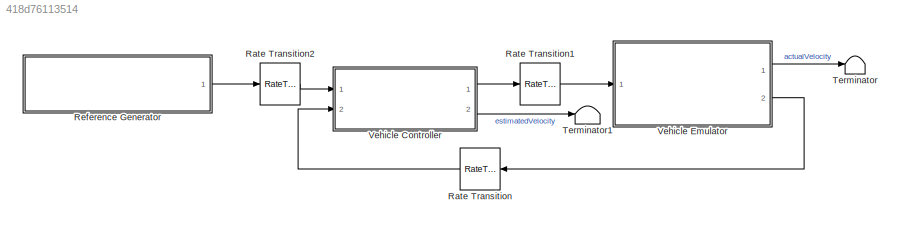
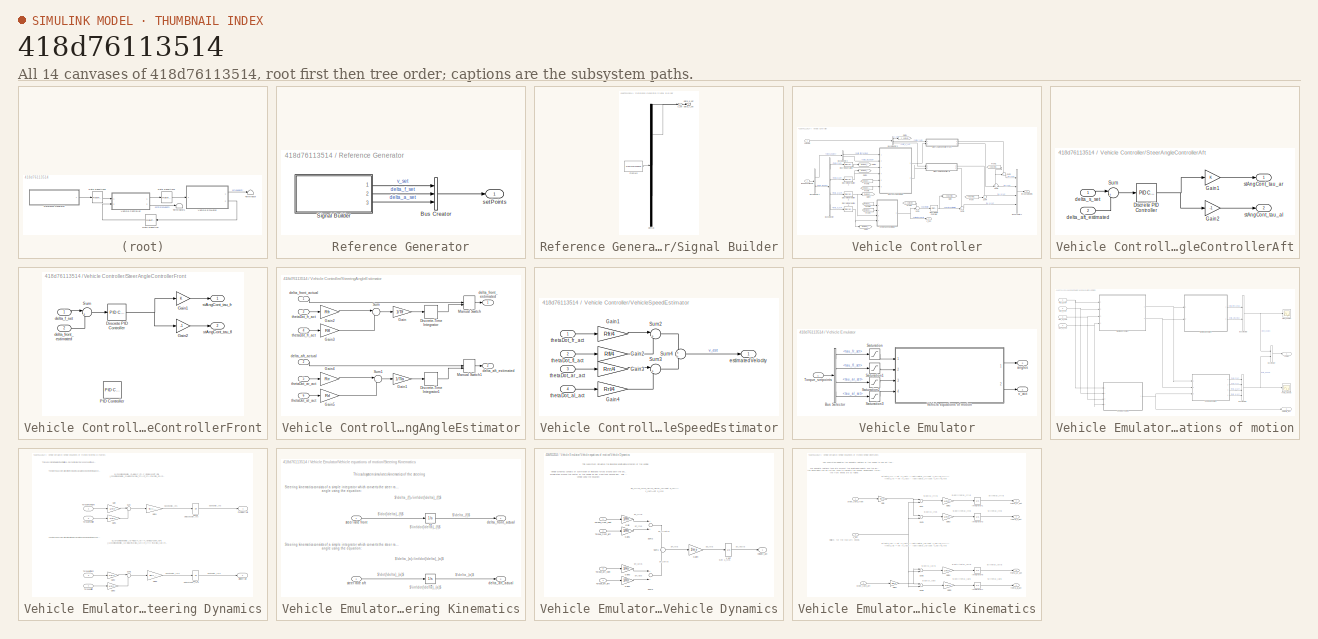
[diagram: thumbnail index - all 14 canvases of the model, root first then tree order]
MODEL slx_418d76113514
KIND model
CONFIG AbsTol = auto
CONFIG EnableMultiTasking = off
CONFIG FixedStep = 0.005
CONFIG MaxStep = auto
CONFIG MinStep = auto
CONFIG RelTol = 1e-3
CONFIG SampleTimeConstraint = Unconstrained
CONFIG Solver = FixedStepAuto
CONFIG SolverName = FixedStepAuto
CONFIG StartTime = 0.0
CONFIG StopTime = 15
WORKSPACE source: mxarray member
WORKSPACE I_a = 2.25
WORKSPACE I_f = 2.25
WORKSPACE Kda = 1
WORKSPACE Kdf = 1
WORKSPACE Kpa = 1
WORKSPACE Kpf = 1
WORKSPACE Kpv = 25
WORKSPACE Rfl = 0.1
WORKSPACE Rfr = 0.1
WORKSPACE Rrl = 0.1
WORKSPACE Rrr = 0.1
WORKSPACE Tla = 0.6
WORKSPACE Tlf = 0.6
WORKSPACE coeffDerivative = 1
WORKSPACE m_v = 200
BLOCK [RateTransition] Rate Transition
BLOCK [RateTransition] Rate Transition1
BLOCK [RateTransition] Rate Transition2
BLOCK [SubSystem] Reference Generator
  Ports = [0, 1]
  RequestExecContextInheritance = off
BLOCK [BusCreator] Reference Generator/Bus Creator
  DisplayOption = bar
  InheritFromInputs = on
  Inputs = 3
  Ports = [3, 1]
BLOCK [SubSystem] Reference Generator/Signal Builder
  ClipboardFcn = sigbuilder_block('clipboard');
  CloseFcn = sigbuilder_block('close');
  ContinueFcn = sigbuilder_block('continue');
  CopyFcn = sigbuilder_block('copy');
  DeleteFcn = sigbuilder_block('delete');
  LoadFcn = sigbuilder_block('load');
  MaskHideContents = on
  ModelCloseFcn = sigbuilder_block('modelClose');
  NameChangeFcn = sigbuilder_block('namechange');
  OpenFcn = sigbuilder_block('open',[1521.6 55.8 550.2 362.4 ]);
  PauseFcn = sigbuilder_block('pause');
  Ports = [0, 3]
  PreSaveFcn = sigbuilder_block('preSave');
  RequestExecContextInheritance = off
  StartFcn = sigbuilder_block('start');
  StopFcn = sigbuilder_block('stop');
  Tag = STV Subsys
BLOCK [Demux] Reference Generator/Signal Builder/Demux
  Outputs = 3
  Ports = [1, 3]
  Tag = STV Demux
BLOCK [FromWorkspace] Reference Generator/Signal Builder/FromWs
  SampleTime = 0
  Tag = STV FromWs
  VariableName = tuvar
  ZeroCross = on
BLOCK [Outport] Reference Generator/Signal Builder/delta_a_set
  IconDisplay = Port number
  Port = 3
  Tag = STV Outport
BLOCK [Outport] Reference Generator/Signal Builder/delta_f_set
  IconDisplay = Port number
  Port = 2
  Tag = STV Outport
BLOCK [Outport] Reference Generator/Signal Builder/v_set
  IconDisplay = Port number
  Tag = STV Outport
BLOCK [Outport] Reference Generator/setPoints
  IconDisplay = Port number
BLOCK [Terminator] Terminator
BLOCK [Terminator] Terminator1
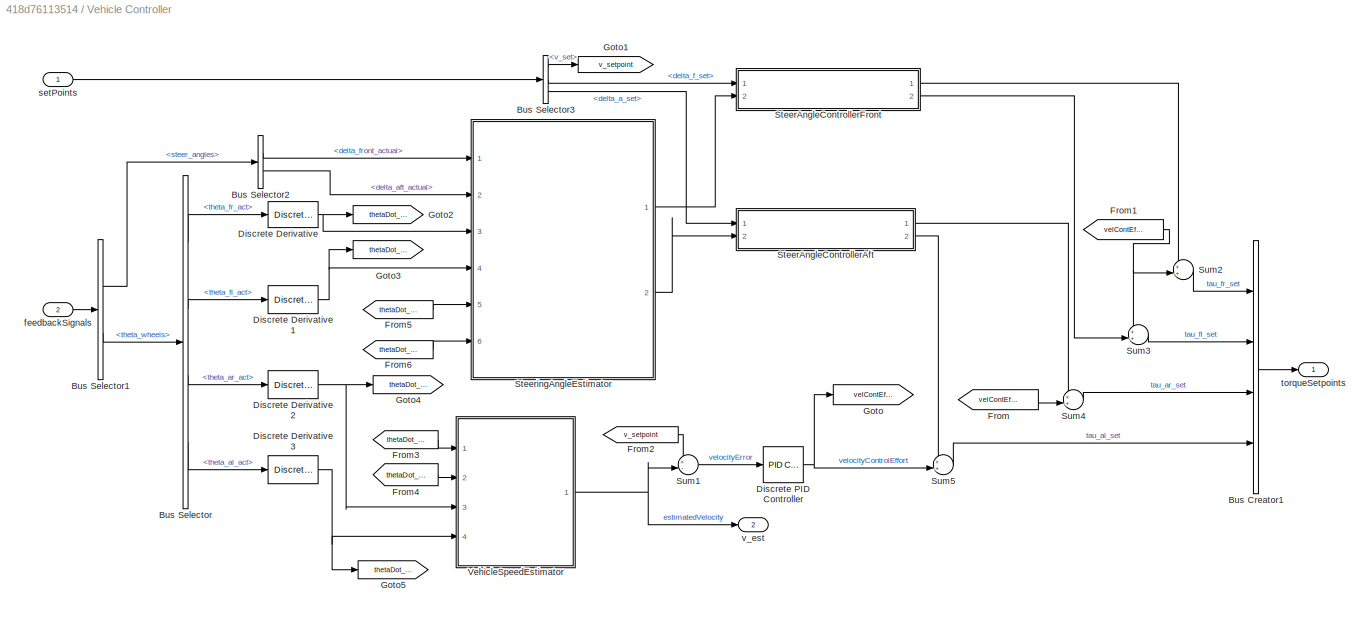
BLOCK [SubSystem] Vehicle Controller
  Ports = [2, 2]
  RequestExecContextInheritance = off
  TreatAsGroupedWhenPropagatingVariantConditions = off
BLOCK [BusCreator] Vehicle Controller/Bus Creator1
  DisplayOption = bar
  InheritFromInputs = on
  Inputs = 4
  Ports = [4, 1]
BLOCK [BusSelector] Vehicle Controller/Bus Selector
  OutputAsBus = off
  OutputSignals = theta_fr_act,theta_fl_act,theta_ar_act,theta_al_act
  Ports = [1, 4]
BLOCK [BusSelector] Vehicle Controller/Bus Selector1
  OutputAsBus = off
  OutputSignals = steer_angles,theta_wheels
  Ports = [1, 2]
BLOCK [BusSelector] Vehicle Controller/Bus Selector2
  OutputAsBus = off
  OutputSignals = delta_front_actual,delta_aft_actual
  Ports = [1, 2]
BLOCK [BusSelector] Vehicle Controller/Bus Selector3
  OutputAsBus = off
  OutputSignals = v_set,delta_f_set,delta_a_set
  Ports = [1, 3]
BLOCK [Reference] Vehicle Controller/Discrete Derivative  REF=simulink/Discrete/Discrete Derivative
  Ports = [1, 1]
  SourceBlock = simulink/Discrete/Discrete Derivative
  SourceProductBaseCode = SL
  SourceProductName = Simulink
  SourceType = Discrete Derivative
BLOCK [Reference] Vehicle Controller/Discrete Derivative1  REF=simulink/Discrete/Discrete Derivative
  Ports = [1, 1]
  SourceBlock = simulink/Discrete/Discrete Derivative
  SourceProductBaseCode = SL
  SourceProductName = Simulink
  SourceType = Discrete Derivative
BLOCK [Reference] Vehicle Controller/Discrete Derivative2  REF=simulink/Discrete/Discrete Derivative
  Ports = [1, 1]
  SourceBlock = simulink/Discrete/Discrete Derivative
  SourceProductBaseCode = SL
  SourceProductName = Simulink
  SourceType = Discrete Derivative
BLOCK [Reference] Vehicle Controller/Discrete Derivative3  REF=simulink/Discrete/Discrete Derivative
  Ports = [1, 1]
  SourceBlock = simulink/Discrete/Discrete Derivative
  SourceProductBaseCode = SL
  SourceProductName = Simulink
  SourceType = Discrete Derivative
BLOCK [Reference] Vehicle Controller/Discrete PID Controller  REF=simulink/Continuous/PID Controller
  Ports = [1, 1]
  SourceBlock = simulink/Continuous/PID Controller
  SourceProductBaseCode = SL
  SourceProductName = Simulink
  SourceType = PID 1dof
BLOCK [From] Vehicle Controller/From
  GotoTag = velContEffort
BLOCK [From] Vehicle Controller/From1
  GotoTag = velContEffort
BLOCK [From] Vehicle Controller/From2
  GotoTag = v_setpoint
BLOCK [From] Vehicle Controller/From3
  GotoTag = thetaDot_fr
BLOCK [From] Vehicle Controller/From4
  GotoTag = thetaDot_fl
BLOCK [From] Vehicle Controller/From5
  GotoTag = thetaDot_ar
BLOCK [From] Vehicle Controller/From6
  GotoTag = thetaDot_al
BLOCK [Goto] Vehicle Controller/Goto
  GotoTag = velContEffort
BLOCK [Goto] Vehicle Controller/Goto1
  GotoTag = v_setpoint
BLOCK [Goto] Vehicle Controller/Goto2
  GotoTag = thetaDot_fr
BLOCK [Goto] Vehicle Controller/Goto3
  GotoTag = thetaDot_fl
BLOCK [Goto] Vehicle Controller/Goto4
  GotoTag = thetaDot_ar
BLOCK [Goto] Vehicle Controller/Goto5
  GotoTag = thetaDot_al
BLOCK [SubSystem] Vehicle Controller/SteerAngleControllerAft
  Ports = [2, 2]
  RequestExecContextInheritance = off
BLOCK [Reference] Vehicle Controller/SteerAngleControllerAft/Discrete PID Controller  REF=simulink/Continuous/PID Controller
  Ports = [1, 1]
  SourceBlock = simulink/Continuous/PID Controller
  SourceProductBaseCode = SL
  SourceProductName = Simulink
  SourceType = PID 1dof
BLOCK [Gain] Vehicle Controller/SteerAngleControllerAft/Gain1
  OutDataTypeStr = Inherit: Inherit via internal rule
  ParamDataTypeStr = Inherit: Inherit via internal rule
  SaturateOnIntegerOverflow = off
BLOCK [Gain] Vehicle Controller/SteerAngleControllerAft/Gain2
  Gain = -1
  OutDataTypeStr = Inherit: Inherit via internal rule
  ParamDataTypeStr = Inherit: Inherit via internal rule
  SaturateOnIntegerOverflow = off
BLOCK [Sum] Vehicle Controller/SteerAngleControllerAft/Sum
  IconShape = round
  InputSameDT = off
  Inputs = |+-
  OutDataTypeStr = Inherit: Inherit via internal rule
  Ports = [2, 1]
  SaturateOnIntegerOverflow = off
BLOCK [Inport] Vehicle Controller/SteerAngleControllerAft/delta_aft_estimated
  IconDisplay = Port number
  Port = 2
BLOCK [Inport] Vehicle Controller/SteerAngleControllerAft/delta_s_set
  IconDisplay = Port number
BLOCK [Outport] Vehicle Controller/SteerAngleControllerAft/stAngCont_tau_al
  IconDisplay = Port number
  Port = 2
BLOCK [Outport] Vehicle Controller/SteerAngleControllerAft/stAngCont_tau_ar
  IconDisplay = Port number
BLOCK [SubSystem] Vehicle Controller/SteerAngleControllerFront
  Ports = [2, 2]
  RequestExecContextInheritance = off
BLOCK [Reference] Vehicle Controller/SteerAngleControllerFront/Discrete PID Controller  REF=simulink/Continuous/PID Controller
  Ports = [1, 1]
  SourceBlock = simulink/Continuous/PID Controller
  SourceProductBaseCode = SL
  SourceProductName = Simulink
  SourceType = PID 1dof
BLOCK [Gain] Vehicle Controller/SteerAngleControllerFront/Gain1
  OutDataTypeStr = Inherit: Inherit via internal rule
  ParamDataTypeStr = Inherit: Inherit via internal rule
  SaturateOnIntegerOverflow = off
BLOCK [Gain] Vehicle Controller/SteerAngleControllerFront/Gain2
  Gain = -1
  OutDataTypeStr = Inherit: Inherit via internal rule
  ParamDataTypeStr = Inherit: Inherit via internal rule
  SaturateOnIntegerOverflow = off
BLOCK [Reference] Vehicle Controller/SteerAngleControllerFront/PID Controller  REF=simulink/Continuous/PID Controller
  Commented = on
  Ports = [1, 1]
  SourceBlock = simulink/Continuous/PID Controller
  SourceProductBaseCode = SL
  SourceProductName = Simulink
  SourceType = PID 1dof
BLOCK [Sum] Vehicle Controller/SteerAngleControllerFront/Sum
  IconShape = round
  InputSameDT = off
  Inputs = |+-
  OutDataTypeStr = Inherit: Inherit via internal rule
  Ports = [2, 1]
  SaturateOnIntegerOverflow = off
BLOCK [Inport] Vehicle Controller/SteerAngleControllerFront/delta_f_set
  IconDisplay = Port number
BLOCK [Inport] Vehicle Controller/SteerAngleControllerFront/delta_front_estimated
  IconDisplay = Port number
  Port = 2
BLOCK [Outport] Vehicle Controller/SteerAngleControllerFront/stAngCont_tau_fl
  IconDisplay = Port number
  Port = 2
BLOCK [Outport] Vehicle Controller/SteerAngleControllerFront/stAngCont_tau_fr
  IconDisplay = Port number
BLOCK [SubSystem] Vehicle Controller/SteeringAngleEstimator
  Ports = [6, 2]
  RequestExecContextInheritance = off
BLOCK [DiscreteIntegrator] Vehicle Controller/SteeringAngleEstimator/Discrete-Time Integrator
  ICPrevOutput = DiscIntNeverNeededParam
  ICPrevScaledInput = DiscIntNeverNeededParam
  InitialConditionSetting = Auto
  Ports = [1, 1]
  SampleTime = -1
BLOCK [DiscreteIntegrator] Vehicle Controller/SteeringAngleEstimator/Discrete-Time Integrator1
  ICPrevOutput = DiscIntNeverNeededParam
  ICPrevScaledInput = DiscIntNeverNeededParam
  InitialConditionSetting = Auto
  Ports = [1, 1]
  SampleTime = -1
BLOCK [Gain] Vehicle Controller/SteeringAngleEstimator/Gain
  Gain = 1/Tlf
  OutDataTypeStr = Inherit: Inherit via internal rule
  ParamDataTypeStr = Inherit: Inherit via internal rule
  SaturateOnIntegerOverflow = off
BLOCK [Gain] Vehicle Controller/SteeringAngleEstimator/Gain1
  Gain = 1/Tla
  OutDataTypeStr = Inherit: Inherit via internal rule
  ParamDataTypeStr = Inherit: Inherit via internal rule
  SaturateOnIntegerOverflow = off
BLOCK [Gain] Vehicle Controller/SteeringAngleEstimator/Gain2
  Gain = Rfr
  OutDataTypeStr = Inherit: Inherit via internal rule
  ParamDataTypeStr = Inherit: Inherit via internal rule
  SaturateOnIntegerOverflow = off
BLOCK [Gain] Vehicle Controller/SteeringAngleEstimator/Gain3
  Gain = Rfl
  OutDataTypeStr = Inherit: Inherit via internal rule
  ParamDataTypeStr = Inherit: Inherit via internal rule
  SaturateOnIntegerOverflow = off
BLOCK [Gain] Vehicle Controller/SteeringAngleEstimator/Gain4
  Gain = Rrr
  OutDataTypeStr = Inherit: Inherit via internal rule
  ParamDataTypeStr = Inherit: Inherit via internal rule
  SaturateOnIntegerOverflow = off
BLOCK [Gain] Vehicle Controller/SteeringAngleEstimator/Gain5
  Gain = Rrl
  OutDataTypeStr = Inherit: Inherit via internal rule
  ParamDataTypeStr = Inherit: Inherit via internal rule
  SaturateOnIntegerOverflow = off
BLOCK [ManualSwitch] Vehicle Controller/SteeringAngleEstimator/Manual Switch
  CurrentSetting = 0
BLOCK [ManualSwitch] Vehicle Controller/SteeringAngleEstimator/Manual Switch1
  CurrentSetting = 0
BLOCK [Sum] Vehicle Controller/SteeringAngleEstimator/Sum
  IconShape = round
  InputSameDT = off
  Inputs = |+-
  OutDataTypeStr = Inherit: Inherit via internal rule
  Ports = [2, 1]
  SaturateOnIntegerOverflow = off
BLOCK [Sum] Vehicle Controller/SteeringAngleEstimator/Sum1
  IconShape = round
  InputSameDT = off
  Inputs = |+-
  OutDataTypeStr = Inherit: Inherit via internal rule
  Ports = [2, 1]
  SaturateOnIntegerOverflow = off
BLOCK [Inport] Vehicle Controller/SteeringAngleEstimator/delta_aft_actual
  IconDisplay = Port number
  Port = 2
BLOCK [Outport] Vehicle Controller/SteeringAngleEstimator/delta_aft_estimated
  IconDisplay = Port number
  Port = 2
BLOCK [Inport] Vehicle Controller/SteeringAngleEstimator/delta_front_actual
  IconDisplay = Port number
BLOCK [Outport] Vehicle Controller/SteeringAngleEstimator/delta_front_estimated
  IconDisplay = Port number
BLOCK [Inport] Vehicle Controller/SteeringAngleEstimator/thetaDot_al_act
  IconDisplay = Port number
  Port = 6
BLOCK [Inport] Vehicle Controller/SteeringAngleEstimator/thetaDot_ar_act
  IconDisplay = Port number
  Port = 5
BLOCK [Inport] Vehicle Controller/SteeringAngleEstimator/thetaDot_fl_act
  IconDisplay = Port number
  Port = 4
BLOCK [Inport] Vehicle Controller/SteeringAngleEstimator/thetaDot_fr_act
  IconDisplay = Port number
  Port = 3
BLOCK [Sum] Vehicle Controller/Sum1
  IconShape = round
  InputSameDT = off
  Inputs = +-|
  OutDataTypeStr = Inherit: Inherit via internal rule
  Ports = [2, 1]
  SaturateOnIntegerOverflow = off
BLOCK [Sum] Vehicle Controller/Sum2
  IconShape = round
  InputSameDT = off
  Inputs = ++|
  OutDataTypeStr = Inherit: Inherit via internal rule
  Ports = [2, 1]
  SaturateOnIntegerOverflow = off
BLOCK [Sum] Vehicle Controller/Sum3
  IconShape = round
  InputSameDT = off
  Inputs = ++|
  OutDataTypeStr = Inherit: Inherit via internal rule
  Ports = [2, 1]
  SaturateOnIntegerOverflow = off
BLOCK [Sum] Vehicle Controller/Sum4
  IconShape = round
  InputSameDT = off
  Inputs = ++|
  OutDataTypeStr = Inherit: Inherit via internal rule
  Ports = [2, 1]
  SaturateOnIntegerOverflow = off
BLOCK [Sum] Vehicle Controller/Sum5
  IconShape = round
  InputSameDT = off
  Inputs = ++|
  OutDataTypeStr = Inherit: Inherit via internal rule
  Ports = [2, 1]
  SaturateOnIntegerOverflow = off
BLOCK [SubSystem] Vehicle Controller/VehicleSpeedEstimator
  Ports = [4, 1]
  RequestExecContextInheritance = off
BLOCK [Gain] Vehicle Controller/VehicleSpeedEstimator/Gain1
  Gain = Rfr/4
  OutDataTypeStr = Inherit: Inherit via internal rule
  ParamDataTypeStr = Inherit: Inherit via internal rule
  SaturateOnIntegerOverflow = off
BLOCK [Gain] Vehicle Controller/VehicleSpeedEstimator/Gain2
  Gain = Rfl/4
  OutDataTypeStr = Inherit: Inherit via internal rule
  ParamDataTypeStr = Inherit: Inherit via internal rule
  SaturateOnIntegerOverflow = off
BLOCK [Gain] Vehicle Controller/VehicleSpeedEstimator/Gain3
  Gain = Rrr/4
  OutDataTypeStr = Inherit: Inherit via internal rule
  ParamDataTypeStr = Inherit: Inherit via internal rule
  SaturateOnIntegerOverflow = off
BLOCK [Gain] Vehicle Controller/VehicleSpeedEstimator/Gain4
  Gain = Rrl/4
  OutDataTypeStr = Inherit: Inherit via internal rule
  ParamDataTypeStr = Inherit: Inherit via internal rule
  SaturateOnIntegerOverflow = off
BLOCK [Sum] Vehicle Controller/VehicleSpeedEstimator/Sum2
  IconShape = round
  InputSameDT = off
  Inputs = |++
  OutDataTypeStr = Inherit: Inherit via internal rule
  Ports = [2, 1]
  SaturateOnIntegerOverflow = off
BLOCK [Sum] Vehicle Controller/VehicleSpeedEstimator/Sum3
  IconShape = round
  InputSameDT = off
  Inputs = |++
  OutDataTypeStr = Inherit: Inherit via internal rule
  Ports = [2, 1]
  SaturateOnIntegerOverflow = off
BLOCK [Sum] Vehicle Controller/VehicleSpeedEstimator/Sum4
  IconShape = round
  InputSameDT = off
  Inputs = +|+
  OutDataTypeStr = Inherit: Inherit via internal rule
  Ports = [2, 1]
  SaturateOnIntegerOverflow = off
BLOCK [Outport] Vehicle Controller/VehicleSpeedEstimator/estimatedVelocity
  IconDisplay = Port number
BLOCK [Inport] Vehicle Controller/VehicleSpeedEstimator/thetaDot_al_act
  IconDisplay = Port number
  Port = 4
BLOCK [Inport] Vehicle Controller/VehicleSpeedEstimator/thetaDot_ar_act
  IconDisplay = Port number
  Port = 3
BLOCK [Inport] Vehicle Controller/VehicleSpeedEstimator/thetaDot_fl_act
  IconDisplay = Port number
  Port = 2
BLOCK [Inport] Vehicle Controller/VehicleSpeedEstimator/thetaDot_fr_act
  IconDisplay = Port number
BLOCK [Inport] Vehicle Controller/feedbackSignals
  IconDisplay = Port number
  Port = 2
BLOCK [Inport] Vehicle Controller/setPoints
  IconDisplay = Port number
BLOCK [Outport] Vehicle Controller/torqueSetpoints
  IconDisplay = Port number
BLOCK [Outport] Vehicle Controller/v_est
  IconDisplay = Port number
  Port = 2
BLOCK [SubSystem] Vehicle Emulator
  Ports = [1, 2]
  RequestExecContextInheritance = off
BLOCK [BusSelector] Vehicle Emulator/Bus Selector
  OutputAsBus = off
  OutputSignals = tau_fr_set,tau_fl_set,tau_ar_set,tau_al_set
  Ports = [1, 4]
BLOCK [Saturate] Vehicle Emulator/Saturation
  InputPortMap = u0
  LowerLimit = -5
  Ports = [1, 1]
  UpperLimit = 5
BLOCK [Saturate] Vehicle Emulator/Saturation1
  InputPortMap = u0
  LowerLimit = -5
  Ports = [1, 1]
  UpperLimit = 5
BLOCK [Saturate] Vehicle Emulator/Saturation2
  InputPortMap = u0
  LowerLimit = -5
  Ports = [1, 1]
  UpperLimit = 5
BLOCK [Saturate] Vehicle Emulator/Saturation3
  InputPortMap = u0
  LowerLimit = -5
  Ports = [1, 1]
  UpperLimit = 5
BLOCK [Inport] Vehicle Emulator/Torque_setpoints
  IconDisplay = Port number
BLOCK [SubSystem] Vehicle Emulator/Vehicle equations of motion
  Ports = [4, 2]
  RequestExecContextInheritance = off
BLOCK [Inport] Vehicle Emulator/Vehicle equations of motion/<tau_al_set>
  IconDisplay = Port number
  Port = 4
BLOCK [Inport] Vehicle Emulator/Vehicle equations of motion/<tau_ar_set>
  IconDisplay = Port number
  Port = 3
BLOCK [Inport] Vehicle Emulator/Vehicle equations of motion/<tau_fl_set>
  IconDisplay = Port number
  Port = 2
BLOCK [Inport] Vehicle Emulator/Vehicle equations of motion/<tau_fr_set>
  IconDisplay = Port number
BLOCK [Outport] Vehicle Emulator/Vehicle equations of motion/Angles
  IconDisplay = Port number
BLOCK [BusCreator] Vehicle Emulator/Vehicle equations of motion/Bus Creator
  DisplayOption = bar
  InheritFromInputs = on
  Inputs = 2
  Ports = [2, 1]
BLOCK [BusCreator] Vehicle Emulator/Vehicle equations of motion/Bus Creator2
  DisplayOption = bar
  InheritFromInputs = on
  Inputs = 4
  Ports = [4, 1]
BLOCK [BusCreator] Vehicle Emulator/Vehicle equations of motion/Bus Creator3
  DisplayOption = bar
  InheritFromInputs = on
  Inputs = 2
  Ports = [2, 1]
BLOCK [Scope] Vehicle Emulator/Vehicle equations of motion/Steer_angles
  Floating = off
  NumInputPorts = 1
  Ports = [1]
  ScopeSpecificationString = Simulink.scopes.TimeScopeBlockCfg('CurrentConfiguration', extmgr.ConfigurationSet(extmgr.Configuration('Core','General UI',true),extmgr.Configuration('Core','Source UI',true),extmgr.Configuration('Sources','WiredSimulink',true,'DataLoggingVariableName','ScopeData1'),extmgr.Configuration('Visuals','Time Domain',true,'SerializedDisplays',{struct('MinYLimReal','-0.2375','MaxYLimReal','0.1375','YLabel...<+1440ch>
BLOCK [SubSystem] Vehicle Emulator/Vehicle equations of motion/Steering Dynamics
  Ports = [4, 2]
  RequestExecContextInheritance = off
BLOCK [Gain] Vehicle Emulator/Vehicle equations of motion/Steering Dynamics/Gain
  Gain = 1/Rfr
  OutDataTypeStr = Inherit: Inherit via internal rule
  ParamDataTypeStr = Inherit: Inherit via internal rule
  SaturateOnIntegerOverflow = off
BLOCK [Gain] Vehicle Emulator/Vehicle equations of motion/Steering Dynamics/Gain1
  Gain = 1/Rfl
  OutDataTypeStr = Inherit: Inherit via internal rule
  ParamDataTypeStr = Inherit: Inherit via internal rule
  SaturateOnIntegerOverflow = off
BLOCK [Gain] Vehicle Emulator/Vehicle equations of motion/Steering Dynamics/Gain2
  Gain = 1/Rrr
  OutDataTypeStr = Inherit: Inherit via internal rule
  ParamDataTypeStr = Inherit: Inherit via internal rule
  SaturateOnIntegerOverflow = off
BLOCK [Gain] Vehicle Emulator/Vehicle equations of motion/Steering Dynamics/Gain3
  Gain = 1/Rrl
  OutDataTypeStr = Inherit: Inherit via internal rule
  ParamDataTypeStr = Inherit: Inherit via internal rule
  SaturateOnIntegerOverflow = off
BLOCK [Gain] Vehicle Emulator/Vehicle equations of motion/Steering Dynamics/Gain4
  Gain = Tlf/(I_f)
  OutDataTypeStr = Inherit: Inherit via internal rule
  ParamDataTypeStr = Inherit: Inherit via internal rule
  SaturateOnIntegerOverflow = off
BLOCK [Gain] Vehicle Emulator/Vehicle equations of motion/Steering Dynamics/Gain5
  Gain = Tla/(I_a)
  OutDataTypeStr = Inherit: Inherit via internal rule
  ParamDataTypeStr = Inherit: Inherit via internal rule
  SaturateOnIntegerOverflow = off
BLOCK [Sum] Vehicle Emulator/Vehicle equations of motion/Steering Dynamics/Sum
  IconShape = round
  InputSameDT = off
  Inputs = |+-
  OutDataTypeStr = Inherit: Inherit via internal rule
  Ports = [2, 1]
  SaturateOnIntegerOverflow = off
BLOCK [Sum] Vehicle Emulator/Vehicle equations of motion/Steering Dynamics/Sum1
  IconShape = round
  InputSameDT = off
  Inputs = |+-
  OutDataTypeStr = Inherit: Inherit via internal rule
  Ports = [2, 1]
  SaturateOnIntegerOverflow = off
BLOCK [Inport] Vehicle Emulator/Vehicle equations of motion/Steering Dynamics/Torque aft left
  IconDisplay = Port number
  Port = 4
BLOCK [Inport] Vehicle Emulator/Vehicle equations of motion/Steering Dynamics/Torque aft right
  IconDisplay = Port number
  Port = 3
BLOCK [Inport] Vehicle Emulator/Vehicle equations of motion/Steering Dynamics/Torque front left
  IconDisplay = Port number
  Port = 2
BLOCK [Inport] Vehicle Emulator/Vehicle equations of motion/Steering Dynamics/Torque front right
  IconDisplay = Port number
BLOCK [Outport] Vehicle Emulator/Vehicle equations of motion/Steering Dynamics/aft steer rate
  IconDisplay = Port number
  Port = 2
BLOCK [Integrator] Vehicle Emulator/Vehicle equations of motion/Steering Dynamics/daa_dt
  Ports = [1, 1]
BLOCK [Integrator] Vehicle Emulator/Vehicle equations of motion/Steering Dynamics/daf_dt
  Ports = [1, 1]
BLOCK [Outport] Vehicle Emulator/Vehicle equations of motion/Steering Dynamics/front steer rate
  IconDisplay = Port number
BLOCK [SubSystem] Vehicle Emulator/Vehicle equations of motion/Steering Kinematics
  Ports = [2, 2]
  RequestExecContextInheritance = off
BLOCK [Integrator] Vehicle Emulator/Vehicle equations of motion/Steering Kinematics/aa
  InitialCondition = -0.2
  Ports = [1, 1]
BLOCK [Integrator] Vehicle Emulator/Vehicle equations of motion/Steering Kinematics/af
  InitialCondition = 0.1
  Ports = [1, 1]
BLOCK [Outport] Vehicle Emulator/Vehicle equations of motion/Steering Kinematics/delta_aft_actual
  IconDisplay = Port number
  Port = 2
BLOCK [Outport] Vehicle Emulator/Vehicle equations of motion/Steering Kinematics/delta_front_actual
  IconDisplay = Port number
BLOCK [Inport] Vehicle Emulator/Vehicle equations of motion/Steering Kinematics/steer rate aft
  IconDisplay = Port number
  Port = 2
BLOCK [Inport] Vehicle Emulator/Vehicle equations of motion/Steering Kinematics/steer rate front
  IconDisplay = Port number
BLOCK [Scope] Vehicle Emulator/Vehicle equations of motion/Theta_wheels
  Floating = off
  NumInputPorts = 1
  Ports = [1]
  ScopeSpecificationString = Simulink.scopes.TimeScopeBlockCfg('CurrentConfiguration', extmgr.ConfigurationSet(extmgr.Configuration('Core','General UI',true),extmgr.Configuration('Core','Source UI',true),extmgr.Configuration('Sources','WiredSimulink',true,'DataLoggingVariableName','ScopeData1'),extmgr.Configuration('Visuals','Time Domain',true,'SerializedDisplays',{struct('MinYLimReal','-1.42001','MaxYLimReal','12.50171','YLa...<+1544ch>
BLOCK [SubSystem] Vehicle Emulator/Vehicle equations of motion/Vehicle Dynamics
  Ports = [4, 1]
  RequestExecContextInheritance = off
BLOCK [Gain] Vehicle Emulator/Vehicle equations of motion/Vehicle Dynamics/Gain
  Gain = 1/Rfr
  OutDataTypeStr = Inherit: Inherit via internal rule
  ParamDataTypeStr = Inherit: Inherit via internal rule
  SaturateOnIntegerOverflow = off
BLOCK [Gain] Vehicle Emulator/Vehicle equations of motion/Vehicle Dynamics/Gain1
  Gain = 1/Rfl
  OutDataTypeStr = Inherit: Inherit via internal rule
  ParamDataTypeStr = Inherit: Inherit via internal rule
  SaturateOnIntegerOverflow = off
BLOCK [Gain] Vehicle Emulator/Vehicle equations of motion/Vehicle Dynamics/Gain2
  Gain = 1/Rrl
  OutDataTypeStr = Inherit: Inherit via internal rule
  ParamDataTypeStr = Inherit: Inherit via internal rule
  SaturateOnIntegerOverflow = off
BLOCK [Gain] Vehicle Emulator/Vehicle equations of motion/Vehicle Dynamics/Gain3
  Gain = 1/Rrr
  OutDataTypeStr = Inherit: Inherit via internal rule
  ParamDataTypeStr = Inherit: Inherit via internal rule
  SaturateOnIntegerOverflow = off
BLOCK [Gain] Vehicle Emulator/Vehicle equations of motion/Vehicle Dynamics/Gain4
  Gain = 1/m_v
  OutDataTypeStr = Inherit: Inherit via internal rule
  ParamDataTypeStr = Inherit: Inherit via internal rule
  SaturateOnIntegerOverflow = off
BLOCK [Sum] Vehicle Emulator/Vehicle equations of motion/Vehicle Dynamics/Sum1
  IconShape = round
  InputSameDT = off
  OutDataTypeStr = Inherit: Inherit via internal rule
  Ports = [2, 1]
  SaturateOnIntegerOverflow = off
BLOCK [Sum] Vehicle Emulator/Vehicle equations of motion/Vehicle Dynamics/Sum2
  InputSameDT = off
  OutDataTypeStr = Inherit: Inherit via internal rule
  Ports = [2, 1]
  SaturateOnIntegerOverflow = off
BLOCK [Sum] Vehicle Emulator/Vehicle equations of motion/Vehicle Dynamics/Sum3
  InputSameDT = off
  OutDataTypeStr = Inherit: Inherit via internal rule
  Ports = [2, 1]
  SaturateOnIntegerOverflow = off
BLOCK [Inport] Vehicle Emulator/Vehicle equations of motion/Vehicle Dynamics/Torque_aft_left
  IconDisplay = Port number
  Port = 4
BLOCK [Inport] Vehicle Emulator/Vehicle equations of motion/Vehicle Dynamics/Torque_aft_right
  IconDisplay = Port number
  Port = 3
BLOCK [Inport] Vehicle Emulator/Vehicle equations of motion/Vehicle Dynamics/Torque_front_left
  IconDisplay = Port number
  Port = 2
BLOCK [Inport] Vehicle Emulator/Vehicle equations of motion/Vehicle Dynamics/Torque_front_right
  IconDisplay = Port number
BLOCK [Integrator] Vehicle Emulator/Vehicle equations of motion/Vehicle Dynamics/v_act
  Ports = [1, 1]
BLOCK [Outport] Vehicle Emulator/Vehicle equations of motion/Vehicle Dynamics/velocity_act
  IconDisplay = Port number
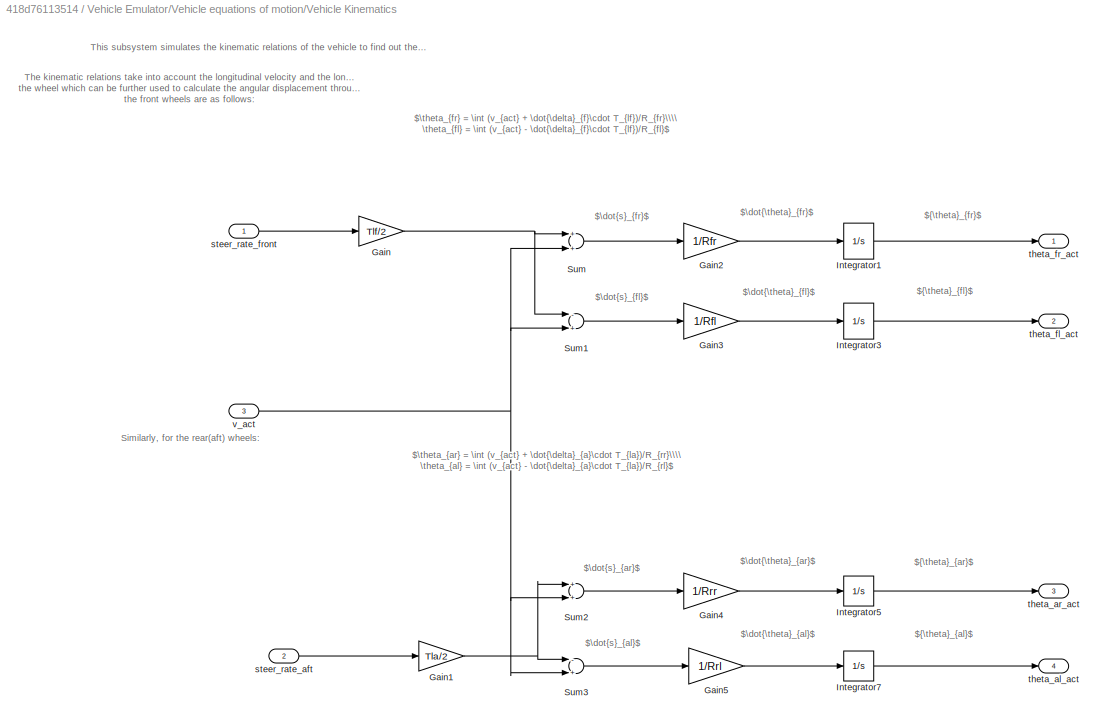
BLOCK [SubSystem] Vehicle Emulator/Vehicle equations of motion/Vehicle Kinematics
  Ports = [3, 4]
  RequestExecContextInheritance = off
BLOCK [Gain] Vehicle Emulator/Vehicle equations of motion/Vehicle Kinematics/Gain
  Gain = Tlf/2
  OutDataTypeStr = Inherit: Inherit via internal rule
  ParamDataTypeStr = Inherit: Inherit via internal rule
  SaturateOnIntegerOverflow = off
BLOCK [Gain] Vehicle Emulator/Vehicle equations of motion/Vehicle Kinematics/Gain1
  Gain = Tla/2
  OutDataTypeStr = Inherit: Inherit via internal rule
  ParamDataTypeStr = Inherit: Inherit via internal rule
  SaturateOnIntegerOverflow = off
BLOCK [Gain] Vehicle Emulator/Vehicle equations of motion/Vehicle Kinematics/Gain2
  Gain = 1/Rfr
  OutDataTypeStr = Inherit: Inherit via internal rule
  ParamDataTypeStr = Inherit: Inherit via internal rule
  SaturateOnIntegerOverflow = off
BLOCK [Gain] Vehicle Emulator/Vehicle equations of motion/Vehicle Kinematics/Gain3
  Gain = 1/Rfl
  OutDataTypeStr = Inherit: Inherit via internal rule
  ParamDataTypeStr = Inherit: Inherit via internal rule
  SaturateOnIntegerOverflow = off
BLOCK [Gain] Vehicle Emulator/Vehicle equations of motion/Vehicle Kinematics/Gain4
  Gain = 1/Rrr
  OutDataTypeStr = Inherit: Inherit via internal rule
  ParamDataTypeStr = Inherit: Inherit via internal rule
  SaturateOnIntegerOverflow = off
BLOCK [Gain] Vehicle Emulator/Vehicle equations of motion/Vehicle Kinematics/Gain5
  Gain = 1/Rrl
  OutDataTypeStr = Inherit: Inherit via internal rule
  ParamDataTypeStr = Inherit: Inherit via internal rule
  SaturateOnIntegerOverflow = off
BLOCK [Integrator] Vehicle Emulator/Vehicle equations of motion/Vehicle Kinematics/Integrator1
  Ports = [1, 1]
BLOCK [Integrator] Vehicle Emulator/Vehicle equations of motion/Vehicle Kinematics/Integrator3
  Ports = [1, 1]
BLOCK [Integrator] Vehicle Emulator/Vehicle equations of motion/Vehicle Kinematics/Integrator5
  Ports = [1, 1]
BLOCK [Integrator] Vehicle Emulator/Vehicle equations of motion/Vehicle Kinematics/Integrator7
  Ports = [1, 1]
BLOCK [Sum] Vehicle Emulator/Vehicle equations of motion/Vehicle Kinematics/Sum
  InputSameDT = off
  OutDataTypeStr = Inherit: Inherit via internal rule
  Ports = [2, 1]
  SaturateOnIntegerOverflow = off
BLOCK [Sum] Vehicle Emulator/Vehicle equations of motion/Vehicle Kinematics/Sum1
  InputSameDT = off
  Inputs = -+
  OutDataTypeStr = Inherit: Inherit via internal rule
  Ports = [2, 1]
  SaturateOnIntegerOverflow = off
BLOCK [Sum] Vehicle Emulator/Vehicle equations of motion/Vehicle Kinematics/Sum2
  InputSameDT = off
  OutDataTypeStr = Inherit: Inherit via internal rule
  Ports = [2, 1]
  SaturateOnIntegerOverflow = off
BLOCK [Sum] Vehicle Emulator/Vehicle equations of motion/Vehicle Kinematics/Sum3
  InputSameDT = off
  Inputs = -+
  OutDataTypeStr = Inherit: Inherit via internal rule
  Ports = [2, 1]
  SaturateOnIntegerOverflow = off
BLOCK [Inport] Vehicle Emulator/Vehicle equations of motion/Vehicle Kinematics/steer_rate_aft
  IconDisplay = Port number
  Port = 2
BLOCK [Inport] Vehicle Emulator/Vehicle equations of motion/Vehicle Kinematics/steer_rate_front
  IconDisplay = Port number
BLOCK [Outport] Vehicle Emulator/Vehicle equations of motion/Vehicle Kinematics/theta_al_act
  IconDisplay = Port number
  Port = 4
BLOCK [Outport] Vehicle Emulator/Vehicle equations of motion/Vehicle Kinematics/theta_ar_act
  IconDisplay = Port number
  Port = 3
BLOCK [Outport] Vehicle Emulator/Vehicle equations of motion/Vehicle Kinematics/theta_fl_act
  IconDisplay = Port number
  Port = 2
BLOCK [Outport] Vehicle Emulator/Vehicle equations of motion/Vehicle Kinematics/theta_fr_act
  IconDisplay = Port number
BLOCK [Inport] Vehicle Emulator/Vehicle equations of motion/Vehicle Kinematics/v_act
  IconDisplay = Port number
  Port = 3
BLOCK [Outport] Vehicle Emulator/Vehicle equations of motion/velocity_act
  IconDisplay = Port number
  Port = 2
BLOCK [Outport] Vehicle Emulator/angles
  IconDisplay = Port number
  Port = 2
BLOCK [Outport] Vehicle Emulator/v_act
  IconDisplay = Port number
ANNOTATION Vehicle Emulator/Vehicle equations of motion/Steering Dynamics: This subsystem simulates the simplified 1-D dynamic steering response of the vehicle
ANNOTATION Vehicle Emulator/Vehicle equations of motion/Steering Dynamics: $\ddot{\delta}_{a}$
ANNOTATION Vehicle Emulator/Vehicle equations of motion/Steering Dynamics: $\ddot{\delta}_{f}$
ANNOTATION Vehicle Emulator/Vehicle equations of motion/Steering Dynamics: $\dot{\delta}_{a}$
ANNOTATION Vehicle Emulator/Vehicle equations of motion/Steering Dynamics: $\dot{\delta}_{f}$
ANNOTATION Vehicle Emulator/Vehicle equations of motion/Steering Dynamics: $I_{a}\cdot\ddot{\delta}_{a} = \bigg(F_{ar}-F_{al}\bigg)\cdot T_{la}\\\\ I_{a}\cdot\ddot{\delta}_{a} = \bigg(\frac{\tau_{ar}}{R_{rr}}-\frac{\tau_{al}}{R_{rl}}\bigg)\cdot T_{la}$
ANNOTATION Vehicle Emulator/Vehicle equations of motion/Steering Dynamics: $I_{f}\cdot\ddot{\delta}_{f} = \bigg(F_{fr}-F_{fl}\bigg)\cdot T_{lf}\\\\ I_{f}\cdot\ddot{\delta}_{f} = \bigg(\frac{\tau_{fr}}{R_{fr}}-\frac{\tau_{fl}}{R_{fl}}\bigg)\cdot T_{lf}$
ANNOTATION Vehicle Emulator/Vehicle equations of motion/Steering Dynamics: $\int\ddot{\delta}_{a}$
ANNOTATION Vehicle Emulator/Vehicle equations of motion/Steering Dynamics: $\int\ddot{\delta}_{f}$
ANNOTATION Vehicle Emulator/Vehicle equations of motion/Steering Dynamics: The steering acceleration of the aft axle is calculated using moment balance around the pivot point (i.e. the center of the axle) using the following equations:
ANNOTATION Vehicle Emulator/Vehicle equations of motion/Steering Dynamics: The steering acceleration of the front axle is calculated using moment balance around the pivot point (i.e. the center of the axle) using the following equations:
ANNOTATION Vehicle Emulator/Vehicle equations of motion/Steering Kinematics: This subsystem simulates kinematics of the steering
ANNOTATION Vehicle Emulator/Vehicle equations of motion/Steering Kinematics: $\delta_{a}$
ANNOTATION Vehicle Emulator/Vehicle equations of motion/Steering Kinematics: $\dot{\delta}_{a}$
ANNOTATION Vehicle Emulator/Vehicle equations of motion/Steering Kinematics: $\int\dot{\delta}_{a}$
ANNOTATION Vehicle Emulator/Vehicle equations of motion/Steering Kinematics: $\delta_{f}$
ANNOTATION Vehicle Emulator/Vehicle equations of motion/Steering Kinematics: $\dot{\delta}_{f}$
ANNOTATION Vehicle Emulator/Vehicle equations of motion/Steering Kinematics: $\int\dot{\delta}_{f}$
ANNOTATION Vehicle Emulator/Vehicle equations of motion/Steering Kinematics: $\delta_{a}=\int\dot{\delta}_{a}$
ANNOTATION Vehicle Emulator/Vehicle equations of motion/Steering Kinematics: $\delta_{f}=\int\dot{\delta}_{f}$
ANNOTATION Vehicle Emulator/Vehicle equations of motion/Steering Kinematics: Steering kinematics consists of a simple integrator which converts the steer rate of the aft axle into steering angle using the equation:
ANNOTATION Vehicle Emulator/Vehicle equations of motion/Steering Kinematics: Steering kinematics consists of a simple integrator which converts the steer rate of the front axle into steering angle using the equation:
ANNOTATION Vehicle Emulator/Vehicle equations of motion/Vehicle Dynamics: $F_{aft}$
ANNOTATION Vehicle Emulator/Vehicle equations of motion/Vehicle Dynamics: $F_{al}$
ANNOTATION Vehicle Emulator/Vehicle equations of motion/Vehicle Dynamics: $F_{ar}$
ANNOTATION Vehicle Emulator/Vehicle equations of motion/Vehicle Dynamics: $F_{fl}$
ANNOTATION Vehicle Emulator/Vehicle equations of motion/Vehicle Dynamics: $F_{front}$
ANNOTATION Vehicle Emulator/Vehicle equations of motion/Vehicle Dynamics: $F_{fr}$
ANNOTATION Vehicle Emulator/Vehicle equations of motion/Vehicle Dynamics: $F_{v}$
ANNOTATION Vehicle Emulator/Vehicle equations of motion/Vehicle Dynamics: $\int a_{v}$
ANNOTATION Vehicle Emulator/Vehicle equations of motion/Vehicle Dynamics: $a_{v}$
ANNOTATION Vehicle Emulator/Vehicle equations of motion/Vehicle Dynamics: $v_{act}$
ANNOTATION Vehicle Emulator/Vehicle equations of motion/Vehicle Dynamics: $F_{fr}+F_{fl}+F_{ar}+F_{al}=m_{v}\cdot a_{v}\\\\ v_{act}=\int a_{v}$
ANNOTATION Vehicle Emulator/Vehicle equations of motion/Vehicle Dynamics: This subsystem simulates the linearized longitudinal dynamics of the vehicle
ANNOTATION Vehicle Emulator/Vehicle equations of motion/Vehicle Dynamics: Vehicle dynamics consists of summation of linearized forces around both the axles. These forces further contribute to creating an acceleration around the center of the vehicle as per Newton's second law. This if further integrated results in the actual velocity of the vehicle using the equation:
ANNOTATION Vehicle Emulator/Vehicle equations of motion/Vehicle Kinematics: $\theta_{ar} = \int (v_{act} + \dot{\delta}_{a}\cdot T_{la})/R_{rr}\\\\ \theta_{al} = \int (v_{act} - \dot{\delta}_{a}\cdot T_{la})/R_{rl}$
ANNOTATION Vehicle Emulator/Vehicle equations of motion/Vehicle Kinematics: $\theta_{fr} = \int (v_{act} + \dot{\delta}_{f}\cdot T_{lf})/R_{fr}\\\\ \theta_{fl} = \int (v_{act} - \dot{\delta}_{f}\cdot T_{lf})/R_{fl}$
ANNOTATION Vehicle Emulator/Vehicle equations of motion/Vehicle Kinematics: $\dot{\theta}_{al}$
ANNOTATION Vehicle Emulator/Vehicle equations of motion/Vehicle Kinematics: $\dot{\theta}_{ar}$
ANNOTATION Vehicle Emulator/Vehicle equations of motion/Vehicle Kinematics: $\dot{\theta}_{fl}$
ANNOTATION Vehicle Emulator/Vehicle equations of motion/Vehicle Kinematics: $\dot{\theta}_{fr}$
ANNOTATION Vehicle Emulator/Vehicle equations of motion/Vehicle Kinematics: $\dot{s}_{al}$
ANNOTATION Vehicle Emulator/Vehicle equations of motion/Vehicle Kinematics: $\dot{s}_{ar}$
ANNOTATION Vehicle Emulator/Vehicle equations of motion/Vehicle Kinematics: $\dot{s}_{fl}$
ANNOTATION Vehicle Emulator/Vehicle equations of motion/Vehicle Kinematics: $\dot{s}_{fr}$
ANNOTATION Vehicle Emulator/Vehicle equations of motion/Vehicle Kinematics: ${\theta}_{al}$
ANNOTATION Vehicle Emulator/Vehicle equations of motion/Vehicle Kinematics: ${\theta}_{ar}$
ANNOTATION Vehicle Emulator/Vehicle equations of motion/Vehicle Kinematics: ${\theta}_{fl}$
ANNOTATION Vehicle Emulator/Vehicle equations of motion/Vehicle Kinematics: ${\theta}_{fr}$
ANNOTATION Vehicle Emulator/Vehicle equations of motion/Vehicle Kinematics: Similarly, for the rear(aft) wheels:
ANNOTATION Vehicle Emulator/Vehicle equations of motion/Vehicle Kinematics: The kinematic relations take into account the longitudinal velocity and the longitudinal component of the steering velocity to calculate the distance travelled by the wheel which can be further used to calculate the angular displacement through simple conversions of translation to rotation. The governing equations for the front wheels are as follows:
ANNOTATION Vehicle Emulator/Vehicle equations of motion/Vehicle Kinematics: This subsystem simulates the kinematic relations of the vehicle to find out the angular displacement of each wheel
LINE Rate Transition1:1 -> Vehicle Emulator:1
LINE Rate Transition2:1 -> Vehicle Controller:1
LINE Rate Transition:1 -> Vehicle Controller:2
LINE Reference Generator/Bus Creator:1 -> Reference Generator/setPoints:1
LINE Reference Generator/Signal Builder:1 -> Reference Generator/Bus Creator:1
LINE Reference Generator/Signal Builder:2 -> Reference Generator/Bus Creator:2
LINE Reference Generator/Signal Builder:3 -> Reference Generator/Bus Creator:3
LINE Reference Generator:1 -> Rate Transition2:1
LINE Vehicle Controller/Bus Creator1:1 -> Vehicle Controller/torqueSetpoints:1
LINE Vehicle Controller/Bus Selector1:1 -> Vehicle Controller/Bus Selector2:1
LINE Vehicle Controller/Bus Selector1:2 -> Vehicle Controller/Bus Selector:1
LINE Vehicle Controller/Bus Selector2:1 -> Vehicle Controller/SteeringAngleEstimator:1
LINE Vehicle Controller/Bus Selector2:2 -> Vehicle Controller/SteeringAngleEstimator:2
LINE Vehicle Controller/Bus Selector3:1 -> Vehicle Controller/Goto1:1
LINE Vehicle Controller/Bus Selector3:2 -> Vehicle Controller/SteerAngleControllerFront:1
LINE Vehicle Controller/Bus Selector3:3 -> Vehicle Controller/SteerAngleControllerAft:1
LINE Vehicle Controller/Bus Selector:1 -> Vehicle Controller/Discrete Derivative:1
LINE Vehicle Controller/Bus Selector:2 -> Vehicle Controller/Discrete Derivative1:1
LINE Vehicle Controller/Bus Selector:3 -> Vehicle Controller/Discrete Derivative2:1
LINE Vehicle Controller/Bus Selector:4 -> Vehicle Controller/Discrete Derivative3:1
NET Vehicle Controller/Discrete Derivative1:1 -> Vehicle Controller/Goto3:1, Vehicle Controller/SteeringAngleEstimator:4
NET Vehicle Controller/Discrete Derivative2:1 -> Vehicle Controller/Goto4:1, Vehicle Controller/VehicleSpeedEstimator:3
NET Vehicle Controller/Discrete Derivative3:1 -> Vehicle Controller/Goto5:1, Vehicle Controller/VehicleSpeedEstimator:4
NET Vehicle Controller/Discrete Derivative:1 -> Vehicle Controller/Goto2:1, Vehicle Controller/SteeringAngleEstimator:3
NET Vehicle Controller/Discrete PID Controller:1 -> Vehicle Controller/Goto:1, Vehicle Controller/Sum5:2
NET Vehicle Controller/From1:1 -> Vehicle Controller/Sum2:2, Vehicle Controller/Sum3:1
LINE Vehicle Controller/From2:1 -> Vehicle Controller/Sum1:1
LINE Vehicle Controller/From3:1 -> Vehicle Controller/VehicleSpeedEstimator:1
LINE Vehicle Controller/From4:1 -> Vehicle Controller/VehicleSpeedEstimator:2
LINE Vehicle Controller/From5:1 -> Vehicle Controller/SteeringAngleEstimator:5
LINE Vehicle Controller/From6:1 -> Vehicle Controller/SteeringAngleEstimator:6
LINE Vehicle Controller/From:1 -> Vehicle Controller/Sum4:2
NET Vehicle Controller/SteerAngleControllerAft/Discrete PID Controller:1 -> Vehicle Controller/SteerAngleControllerAft/Gain1:1, Vehicle Controller/SteerAngleControllerAft/Gain2:1
LINE Vehicle Controller/SteerAngleControllerAft/Gain1:1 -> Vehicle Controller/SteerAngleControllerAft/stAngCont_tau_ar:1
LINE Vehicle Controller/SteerAngleControllerAft/Gain2:1 -> Vehicle Controller/SteerAngleControllerAft/stAngCont_tau_al:1
LINE Vehicle Controller/SteerAngleControllerAft/Sum:1 -> Vehicle Controller/SteerAngleControllerAft/Discrete PID Controller:1
LINE Vehicle Controller/SteerAngleControllerAft/delta_aft_estimated:1 -> Vehicle Controller/SteerAngleControllerAft/Sum:2
LINE Vehicle Controller/SteerAngleControllerAft/delta_s_set:1 -> Vehicle Controller/SteerAngleControllerAft/Sum:1
LINE Vehicle Controller/SteerAngleControllerAft:1 -> Vehicle Controller/Sum4:1
LINE Vehicle Controller/SteerAngleControllerAft:2 -> Vehicle Controller/Sum5:1
NET Vehicle Controller/SteerAngleControllerFront/Discrete PID Controller:1 -> Vehicle Controller/SteerAngleControllerFront/Gain1:1, Vehicle Controller/SteerAngleControllerFront/Gain2:1
LINE Vehicle Controller/SteerAngleControllerFront/Gain1:1 -> Vehicle Controller/SteerAngleControllerFront/stAngCont_tau_fr:1
LINE Vehicle Controller/SteerAngleControllerFront/Gain2:1 -> Vehicle Controller/SteerAngleControllerFront/stAngCont_tau_fl:1
LINE Vehicle Controller/SteerAngleControllerFront/Sum:1 -> Vehicle Controller/SteerAngleControllerFront/Discrete PID Controller:1
LINE Vehicle Controller/SteerAngleControllerFront/delta_f_set:1 -> Vehicle Controller/SteerAngleControllerFront/Sum:1
LINE Vehicle Controller/SteerAngleControllerFront/delta_front_estimated:1 -> Vehicle Controller/SteerAngleControllerFront/Sum:2
LINE Vehicle Controller/SteerAngleControllerFront:1 -> Vehicle Controller/Sum2:1
LINE Vehicle Controller/SteerAngleControllerFront:2 -> Vehicle Controller/Sum3:2
LINE Vehicle Controller/SteeringAngleEstimator/Discrete-Time Integrator1:1 -> Vehicle Controller/SteeringAngleEstimator/Manual Switch1:2
LINE Vehicle Controller/SteeringAngleEstimator/Discrete-Time Integrator:1 -> Vehicle Controller/SteeringAngleEstimator/Manual Switch:2
LINE Vehicle Controller/SteeringAngleEstimator/Gain1:1 -> Vehicle Controller/SteeringAngleEstimator/Discrete-Time Integrator1:1
LINE Vehicle Controller/SteeringAngleEstimator/Gain2:1 -> Vehicle Controller/SteeringAngleEstimator/Sum:1
LINE Vehicle Controller/SteeringAngleEstimator/Gain3:1 -> Vehicle Controller/SteeringAngleEstimator/Sum:2
LINE Vehicle Controller/SteeringAngleEstimator/Gain4:1 -> Vehicle Controller/SteeringAngleEstimator/Sum1:1
LINE Vehicle Controller/SteeringAngleEstimator/Gain5:1 -> Vehicle Controller/SteeringAngleEstimator/Sum1:2
LINE Vehicle Controller/SteeringAngleEstimator/Gain:1 -> Vehicle Controller/SteeringAngleEstimator/Discrete-Time Integrator:1
LINE Vehicle Controller/SteeringAngleEstimator/Manual Switch1:1 -> Vehicle Controller/SteeringAngleEstimator/delta_aft_estimated:1
LINE Vehicle Controller/SteeringAngleEstimator/Manual Switch:1 -> Vehicle Controller/SteeringAngleEstimator/delta_front_estimated:1
LINE Vehicle Controller/SteeringAngleEstimator/Sum1:1 -> Vehicle Controller/SteeringAngleEstimator/Gain1:1
LINE Vehicle Controller/SteeringAngleEstimator/Sum:1 -> Vehicle Controller/SteeringAngleEstimator/Gain:1
LINE Vehicle Controller/SteeringAngleEstimator/delta_aft_actual:1 -> Vehicle Controller/SteeringAngleEstimator/Manual Switch1:1
LINE Vehicle Controller/SteeringAngleEstimator/delta_front_actual:1 -> Vehicle Controller/SteeringAngleEstimator/Manual Switch:1
LINE Vehicle Controller/SteeringAngleEstimator/thetaDot_al_act:1 -> Vehicle Controller/SteeringAngleEstimator/Gain5:1
LINE Vehicle Controller/SteeringAngleEstimator/thetaDot_ar_act:1 -> Vehicle Controller/SteeringAngleEstimator/Gain4:1
LINE Vehicle Controller/SteeringAngleEstimator/thetaDot_fl_act:1 -> Vehicle Controller/SteeringAngleEstimator/Gain3:1
LINE Vehicle Controller/SteeringAngleEstimator/thetaDot_fr_act:1 -> Vehicle Controller/SteeringAngleEstimator/Gain2:1
LINE Vehicle Controller/SteeringAngleEstimator:1 -> Vehicle Controller/SteerAngleControllerFront:2
LINE Vehicle Controller/SteeringAngleEstimator:2 -> Vehicle Controller/SteerAngleControllerAft:2
LINE Vehicle Controller/Sum1:1 -> Vehicle Controller/Discrete PID Controller:1
LINE Vehicle Controller/Sum2:1 -> Vehicle Controller/Bus Creator1:1
LINE Vehicle Controller/Sum3:1 -> Vehicle Controller/Bus Creator1:2
LINE Vehicle Controller/Sum4:1 -> Vehicle Controller/Bus Creator1:3
LINE Vehicle Controller/Sum5:1 -> Vehicle Controller/Bus Creator1:4
LINE Vehicle Controller/VehicleSpeedEstimator/Gain1:1 -> Vehicle Controller/VehicleSpeedEstimator/Sum2:1
LINE Vehicle Controller/VehicleSpeedEstimator/Gain2:1 -> Vehicle Controller/VehicleSpeedEstimator/Sum2:2
LINE Vehicle Controller/VehicleSpeedEstimator/Gain3:1 -> Vehicle Controller/VehicleSpeedEstimator/Sum3:1
LINE Vehicle Controller/VehicleSpeedEstimator/Gain4:1 -> Vehicle Controller/VehicleSpeedEstimator/Sum3:2
LINE Vehicle Controller/VehicleSpeedEstimator/Sum2:1 -> Vehicle Controller/VehicleSpeedEstimator/Sum4:1
LINE Vehicle Controller/VehicleSpeedEstimator/Sum3:1 -> Vehicle Controller/VehicleSpeedEstimator/Sum4:2
LINE Vehicle Controller/VehicleSpeedEstimator/Sum4:1 -> Vehicle Controller/VehicleSpeedEstimator/estimatedVelocity:1
LINE Vehicle Controller/VehicleSpeedEstimator/thetaDot_al_act:1 -> Vehicle Controller/VehicleSpeedEstimator/Gain4:1
LINE Vehicle Controller/VehicleSpeedEstimator/thetaDot_ar_act:1 -> Vehicle Controller/VehicleSpeedEstimator/Gain3:1
LINE Vehicle Controller/VehicleSpeedEstimator/thetaDot_fl_act:1 -> Vehicle Controller/VehicleSpeedEstimator/Gain2:1
LINE Vehicle Controller/VehicleSpeedEstimator/thetaDot_fr_act:1 -> Vehicle Controller/VehicleSpeedEstimator/Gain1:1
NET Vehicle Controller/VehicleSpeedEstimator:1 -> Vehicle Controller/Sum1:2, Vehicle Controller/v_est:1
LINE Vehicle Controller/feedbackSignals:1 -> Vehicle Controller/Bus Selector1:1
LINE Vehicle Controller/setPoints:1 -> Vehicle Controller/Bus Selector3:1
LINE Vehicle Controller:1 -> Rate Transition1:1
LINE Vehicle Controller:2 -> Terminator1:1
LINE Vehicle Emulator/Bus Selector:1 -> Vehicle Emulator/Saturation:1
LINE Vehicle Emulator/Bus Selector:2 -> Vehicle Emulator/Saturation1:1
LINE Vehicle Emulator/Bus Selector:3 -> Vehicle Emulator/Saturation2:1
LINE Vehicle Emulator/Bus Selector:4 -> Vehicle Emulator/Saturation3:1
LINE Vehicle Emulator/Saturation1:1 -> Vehicle Emulator/Vehicle equations of motion:2
LINE Vehicle Emulator/Saturation2:1 -> Vehicle Emulator/Vehicle equations of motion:3
LINE Vehicle Emulator/Saturation3:1 -> Vehicle Emulator/Vehicle equations of motion:4
LINE Vehicle Emulator/Saturation:1 -> Vehicle Emulator/Vehicle equations of motion:1
LINE Vehicle Emulator/Torque_setpoints:1 -> Vehicle Emulator/Bus Selector:1
NET Vehicle Emulator/Vehicle equations of motion/<tau_al_set>:1 -> Vehicle Emulator/Vehicle equations of motion/Steering Dynamics:4, Vehicle Emulator/Vehicle equations of motion/Vehicle Dynamics:4
NET Vehicle Emulator/Vehicle equations of motion/<tau_ar_set>:1 -> Vehicle Emulator/Vehicle equations of motion/Steering Dynamics:3, Vehicle Emulator/Vehicle equations of motion/Vehicle Dynamics:3
NET Vehicle Emulator/Vehicle equations of motion/<tau_fl_set>:1 -> Vehicle Emulator/Vehicle equations of motion/Steering Dynamics:2, Vehicle Emulator/Vehicle equations of motion/Vehicle Dynamics:2
NET Vehicle Emulator/Vehicle equations of motion/<tau_fr_set>:1 -> Vehicle Emulator/Vehicle equations of motion/Steering Dynamics:1, Vehicle Emulator/Vehicle equations of motion/Vehicle Dynamics:1
NET Vehicle Emulator/Vehicle equations of motion/Bus Creator2:1 -> Vehicle Emulator/Vehicle equations of motion/Bus Creator:2, Vehicle Emulator/Vehicle equations of motion/Theta_wheels:1
NET Vehicle Emulator/Vehicle equations of motion/Bus Creator3:1 -> Vehicle Emulator/Vehicle equations of motion/Bus Creator:1, Vehicle Emulator/Vehicle equations of motion/Steer_angles:1
LINE Vehicle Emulator/Vehicle equations of motion/Bus Creator:1 -> Vehicle Emulator/Vehicle equations of motion/Angles:1
LINE Vehicle Emulator/Vehicle equations of motion/Steering Dynamics/Gain1:1 -> Vehicle Emulator/Vehicle equations of motion/Steering Dynamics/Sum:2
LINE Vehicle Emulator/Vehicle equations of motion/Steering Dynamics/Gain2:1 -> Vehicle Emulator/Vehicle equations of motion/Steering Dynamics/Sum1:1
LINE Vehicle Emulator/Vehicle equations of motion/Steering Dynamics/Gain3:1 -> Vehicle Emulator/Vehicle equations of motion/Steering Dynamics/Sum1:2
LINE Vehicle Emulator/Vehicle equations of motion/Steering Dynamics/Gain4:1 -> Vehicle Emulator/Vehicle equations of motion/Steering Dynamics/daf_dt:1
LINE Vehicle Emulator/Vehicle equations of motion/Steering Dynamics/Gain5:1 -> Vehicle Emulator/Vehicle equations of motion/Steering Dynamics/daa_dt:1
LINE Vehicle Emulator/Vehicle equations of motion/Steering Dynamics/Gain:1 -> Vehicle Emulator/Vehicle equations of motion/Steering Dynamics/Sum:1
LINE Vehicle Emulator/Vehicle equations of motion/Steering Dynamics/Sum1:1 -> Vehicle Emulator/Vehicle equations of motion/Steering Dynamics/Gain5:1
LINE Vehicle Emulator/Vehicle equations of motion/Steering Dynamics/Sum:1 -> Vehicle Emulator/Vehicle equations of motion/Steering Dynamics/Gain4:1
LINE Vehicle Emulator/Vehicle equations of motion/Steering Dynamics/Torque aft left:1 -> Vehicle Emulator/Vehicle equations of motion/Steering Dynamics/Gain3:1
LINE Vehicle Emulator/Vehicle equations of motion/Steering Dynamics/Torque aft right:1 -> Vehicle Emulator/Vehicle equations of motion/Steering Dynamics/Gain2:1
LINE Vehicle Emulator/Vehicle equations of motion/Steering Dynamics/Torque front left:1 -> Vehicle Emulator/Vehicle equations of motion/Steering Dynamics/Gain1:1
LINE Vehicle Emulator/Vehicle equations of motion/Steering Dynamics/Torque front right:1 -> Vehicle Emulator/Vehicle equations of motion/Steering Dynamics/Gain:1
LINE Vehicle Emulator/Vehicle equations of motion/Steering Dynamics/daa_dt:1 -> Vehicle Emulator/Vehicle equations of motion/Steering Dynamics/aft steer rate:1
LINE Vehicle Emulator/Vehicle equations of motion/Steering Dynamics/daf_dt:1 -> Vehicle Emulator/Vehicle equations of motion/Steering Dynamics/front steer rate:1
NET Vehicle Emulator/Vehicle equations of motion/Steering Dynamics:1 -> Vehicle Emulator/Vehicle equations of motion/Steering Kinematics:1, Vehicle Emulator/Vehicle equations of motion/Vehicle Kinematics:1
NET Vehicle Emulator/Vehicle equations of motion/Steering Dynamics:2 -> Vehicle Emulator/Vehicle equations of motion/Steering Kinematics:2, Vehicle Emulator/Vehicle equations of motion/Vehicle Kinematics:2
LINE Vehicle Emulator/Vehicle equations of motion/Steering Kinematics/aa:1 -> Vehicle Emulator/Vehicle equations of motion/Steering Kinematics/delta_aft_actual:1
LINE Vehicle Emulator/Vehicle equations of motion/Steering Kinematics/af:1 -> Vehicle Emulator/Vehicle equations of motion/Steering Kinematics/delta_front_actual:1
LINE Vehicle Emulator/Vehicle equations of motion/Steering Kinematics/steer rate aft:1 -> Vehicle Emulator/Vehicle equations of motion/Steering Kinematics/aa:1
LINE Vehicle Emulator/Vehicle equations of motion/Steering Kinematics/steer rate front:1 -> Vehicle Emulator/Vehicle equations of motion/Steering Kinematics/af:1
LINE Vehicle Emulator/Vehicle equations of motion/Steering Kinematics:1 -> Vehicle Emulator/Vehicle equations of motion/Bus Creator3:1
LINE Vehicle Emulator/Vehicle equations of motion/Steering Kinematics:2 -> Vehicle Emulator/Vehicle equations of motion/Bus Creator3:2
LINE Vehicle Emulator/Vehicle equations of motion/Vehicle Dynamics/Gain1:1 -> Vehicle Emulator/Vehicle equations of motion/Vehicle Dynamics/Sum2:2
LINE Vehicle Emulator/Vehicle equations of motion/Vehicle Dynamics/Gain2:1 -> Vehicle Emulator/Vehicle equations of motion/Vehicle Dynamics/Sum3:2
LINE Vehicle Emulator/Vehicle equations of motion/Vehicle Dynamics/Gain3:1 -> Vehicle Emulator/Vehicle equations of motion/Vehicle Dynamics/Sum3:1
LINE Vehicle Emulator/Vehicle equations of motion/Vehicle Dynamics/Gain4:1 -> Vehicle Emulator/Vehicle equations of motion/Vehicle Dynamics/v_act:1
LINE Vehicle Emulator/Vehicle equations of motion/Vehicle Dynamics/Gain:1 -> Vehicle Emulator/Vehicle equations of motion/Vehicle Dynamics/Sum2:1
LINE Vehicle Emulator/Vehicle equations of motion/Vehicle Dynamics/Sum1:1 -> Vehicle Emulator/Vehicle equations of motion/Vehicle Dynamics/Gain4:1
LINE Vehicle Emulator/Vehicle equations of motion/Vehicle Dynamics/Sum2:1 -> Vehicle Emulator/Vehicle equations of motion/Vehicle Dynamics/Sum1:1
LINE Vehicle Emulator/Vehicle equations of motion/Vehicle Dynamics/Sum3:1 -> Vehicle Emulator/Vehicle equations of motion/Vehicle Dynamics/Sum1:2
LINE Vehicle Emulator/Vehicle equations of motion/Vehicle Dynamics/Torque_aft_left:1 -> Vehicle Emulator/Vehicle equations of motion/Vehicle Dynamics/Gain2:1
LINE Vehicle Emulator/Vehicle equations of motion/Vehicle Dynamics/Torque_aft_right:1 -> Vehicle Emulator/Vehicle equations of motion/Vehicle Dynamics/Gain3:1
LINE Vehicle Emulator/Vehicle equations of motion/Vehicle Dynamics/Torque_front_left:1 -> Vehicle Emulator/Vehicle equations of motion/Vehicle Dynamics/Gain1:1
LINE Vehicle Emulator/Vehicle equations of motion/Vehicle Dynamics/Torque_front_right:1 -> Vehicle Emulator/Vehicle equations of motion/Vehicle Dynamics/Gain:1
LINE Vehicle Emulator/Vehicle equations of motion/Vehicle Dynamics/v_act:1 -> Vehicle Emulator/Vehicle equations of motion/Vehicle Dynamics/velocity_act:1
NET Vehicle Emulator/Vehicle equations of motion/Vehicle Dynamics:1 -> Vehicle Emulator/Vehicle equations of motion/Vehicle Kinematics:3, Vehicle Emulator/Vehicle equations of motion/velocity_act:1
NET Vehicle Emulator/Vehicle equations of motion/Vehicle Kinematics/Gain1:1 -> Vehicle Emulator/Vehicle equations of motion/Vehicle Kinematics/Sum2:1, Vehicle Emulator/Vehicle equations of motion/Vehicle Kinematics/Sum3:1
LINE Vehicle Emulator/Vehicle equations of motion/Vehicle Kinematics/Gain2:1 -> Vehicle Emulator/Vehicle equations of motion/Vehicle Kinematics/Integrator1:1
LINE Vehicle Emulator/Vehicle equations of motion/Vehicle Kinematics/Gain3:1 -> Vehicle Emulator/Vehicle equations of motion/Vehicle Kinematics/Integrator3:1
LINE Vehicle Emulator/Vehicle equations of motion/Vehicle Kinematics/Gain4:1 -> Vehicle Emulator/Vehicle equations of motion/Vehicle Kinematics/Integrator5:1
LINE Vehicle Emulator/Vehicle equations of motion/Vehicle Kinematics/Gain5:1 -> Vehicle Emulator/Vehicle equations of motion/Vehicle Kinematics/Integrator7:1
NET Vehicle Emulator/Vehicle equations of motion/Vehicle Kinematics/Gain:1 -> Vehicle Emulator/Vehicle equations of motion/Vehicle Kinematics/Sum1:1, Vehicle Emulator/Vehicle equations of motion/Vehicle Kinematics/Sum:1
LINE Vehicle Emulator/Vehicle equations of motion/Vehicle Kinematics/Integrator1:1 -> Vehicle Emulator/Vehicle equations of motion/Vehicle Kinematics/theta_fr_act:1
LINE Vehicle Emulator/Vehicle equations of motion/Vehicle Kinematics/Integrator3:1 -> Vehicle Emulator/Vehicle equations of motion/Vehicle Kinematics/theta_fl_act:1
LINE Vehicle Emulator/Vehicle equations of motion/Vehicle Kinematics/Integrator5:1 -> Vehicle Emulator/Vehicle equations of motion/Vehicle Kinematics/theta_ar_act:1
LINE Vehicle Emulator/Vehicle equations of motion/Vehicle Kinematics/Integrator7:1 -> Vehicle Emulator/Vehicle equations of motion/Vehicle Kinematics/theta_al_act:1
LINE Vehicle Emulator/Vehicle equations of motion/Vehicle Kinematics/Sum1:1 -> Vehicle Emulator/Vehicle equations of motion/Vehicle Kinematics/Gain3:1
LINE Vehicle Emulator/Vehicle equations of motion/Vehicle Kinematics/Sum2:1 -> Vehicle Emulator/Vehicle equations of motion/Vehicle Kinematics/Gain4:1
LINE Vehicle Emulator/Vehicle equations of motion/Vehicle Kinematics/Sum3:1 -> Vehicle Emulator/Vehicle equations of motion/Vehicle Kinematics/Gain5:1
LINE Vehicle Emulator/Vehicle equations of motion/Vehicle Kinematics/Sum:1 -> Vehicle Emulator/Vehicle equations of motion/Vehicle Kinematics/Gain2:1
LINE Vehicle Emulator/Vehicle equations of motion/Vehicle Kinematics/steer_rate_aft:1 -> Vehicle Emulator/Vehicle equations of motion/Vehicle Kinematics/Gain1:1
LINE Vehicle Emulator/Vehicle equations of motion/Vehicle Kinematics/steer_rate_front:1 -> Vehicle Emulator/Vehicle equations of motion/Vehicle Kinematics/Gain:1
NET Vehicle Emulator/Vehicle equations of motion/Vehicle Kinematics/v_act:1 -> Vehicle Emulator/Vehicle equations of motion/Vehicle Kinematics/Sum1:2, Vehicle Emulator/Vehicle equations of motion/Vehicle Kinematics/Sum2:2, Vehicle Emulator/Vehicle equations of motion/Vehicle Kinematics/Sum3:2, Vehicle Emulator/Vehicle equations of motion/Vehicle Kinematics/Sum:2
LINE Vehicle Emulator/Vehicle equations of motion/Vehicle Kinematics:1 -> Vehicle Emulator/Vehicle equations of motion/Bus Creator2:1
LINE Vehicle Emulator/Vehicle equations of motion/Vehicle Kinematics:2 -> Vehicle Emulator/Vehicle equations of motion/Bus Creator2:2
LINE Vehicle Emulator/Vehicle equations of motion/Vehicle Kinematics:3 -> Vehicle Emulator/Vehicle equations of motion/Bus Creator2:3
LINE Vehicle Emulator/Vehicle equations of motion/Vehicle Kinematics:4 -> Vehicle Emulator/Vehicle equations of motion/Bus Creator2:4
LINE Vehicle Emulator/Vehicle equations of motion:1 -> Vehicle Emulator/angles:1
LINE Vehicle Emulator/Vehicle equations of motion:2 -> Vehicle Emulator/v_act:1
LINE Vehicle Emulator:1 -> Terminator:1
LINE Vehicle Emulator:2 -> Rate Transition:1
note: NET lines group one-source signal fan-out (src -> all destinations, sorted); 1:1 wires keep LINE
